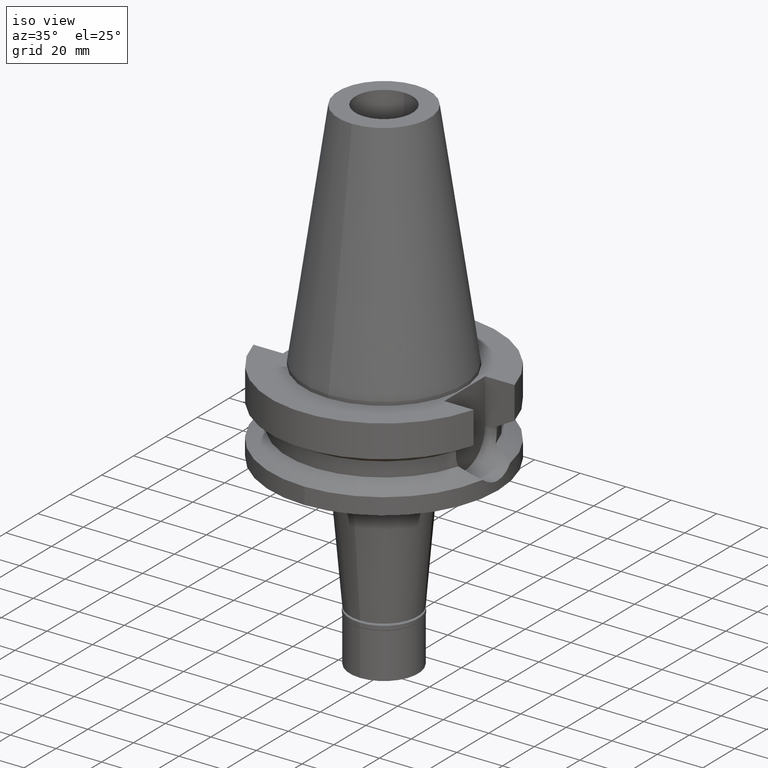
[diagram: clean part render]
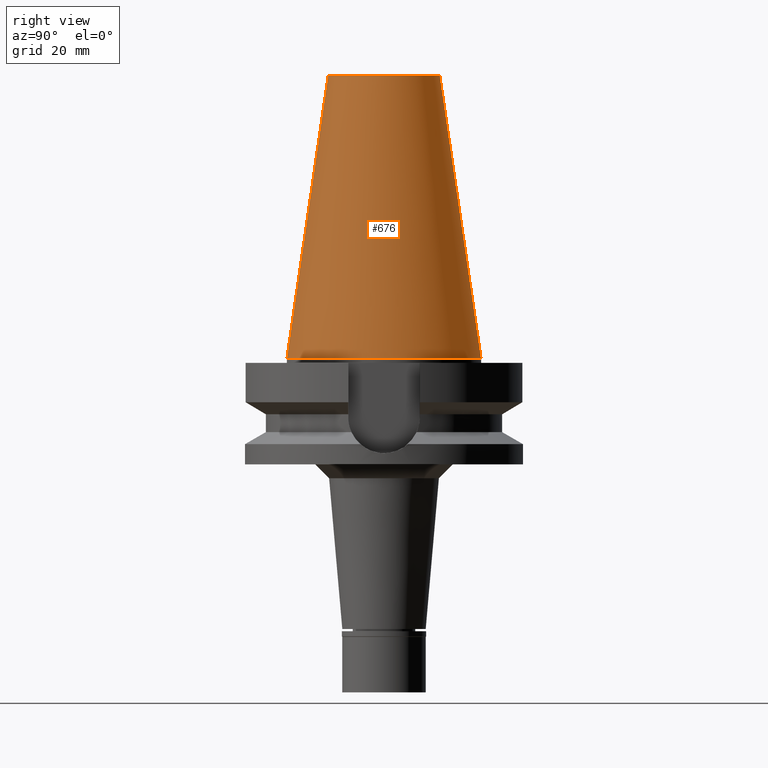
[diagram: tour spotlight — one face highlighted and labeled with its STEP entity id]
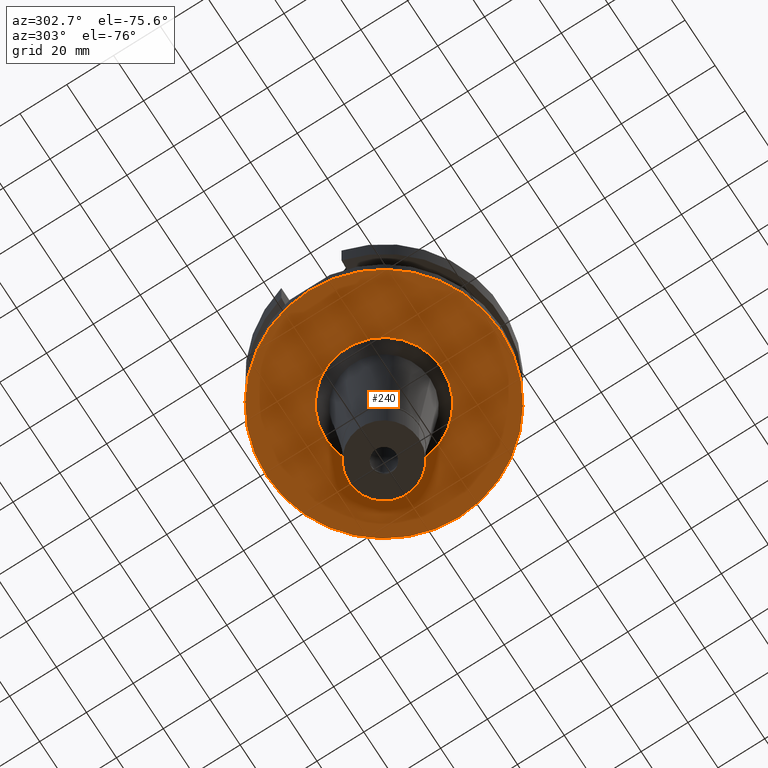
[diagram: tour spotlight — one face highlighted and labeled with its STEP entity id]
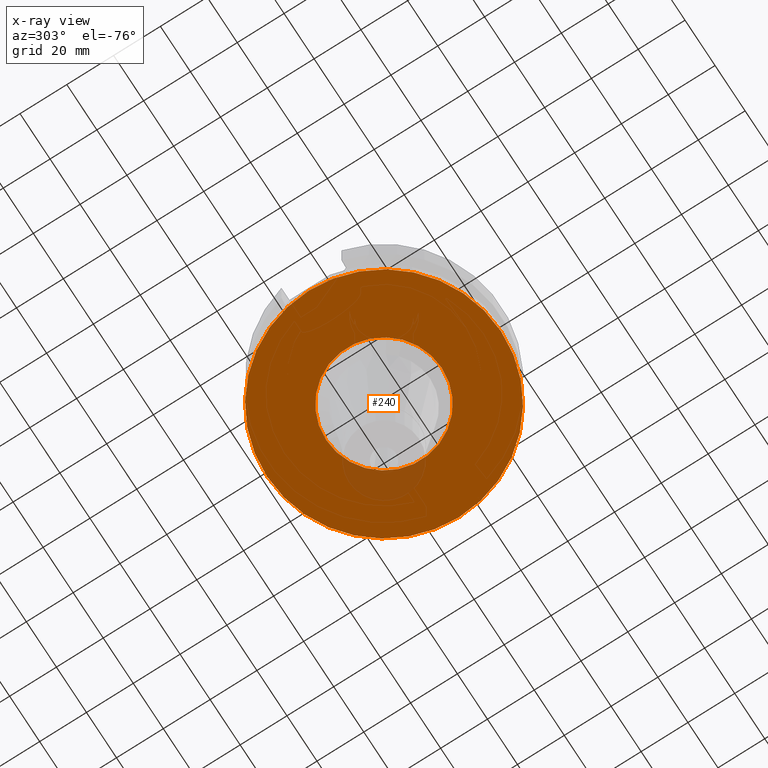
[diagram: x-ray of the same camera — body ghosted, this tour face saturated]
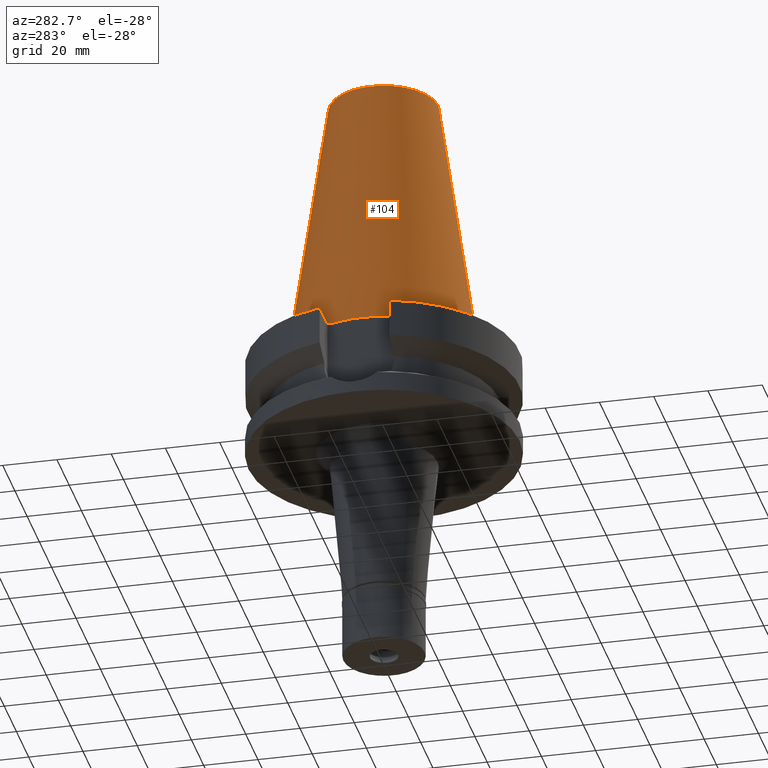
[diagram: tour spotlight — one face highlighted and labeled with its STEP entity id]
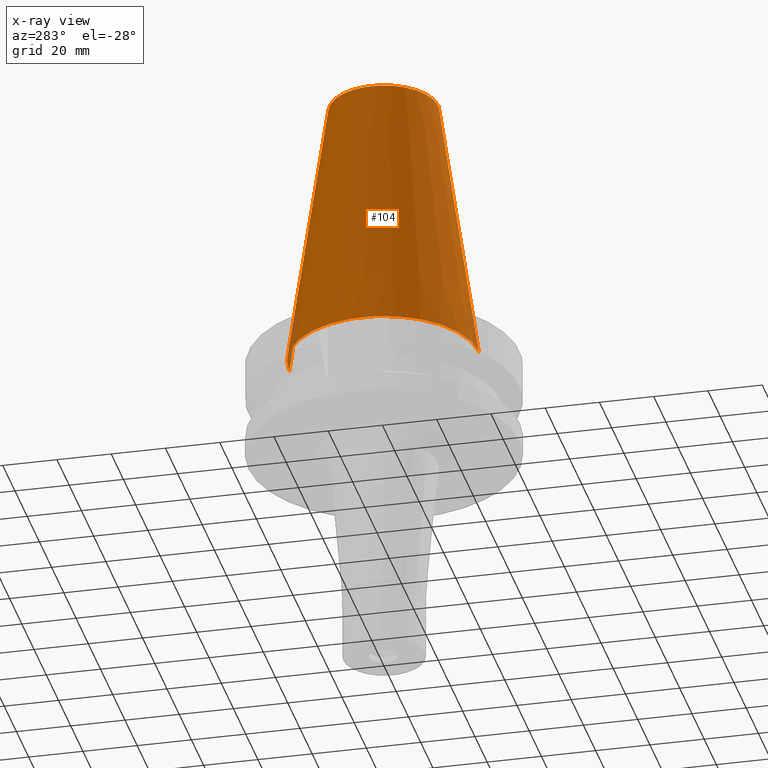
[diagram: x-ray of the same camera — body ghosted, this tour face saturated]
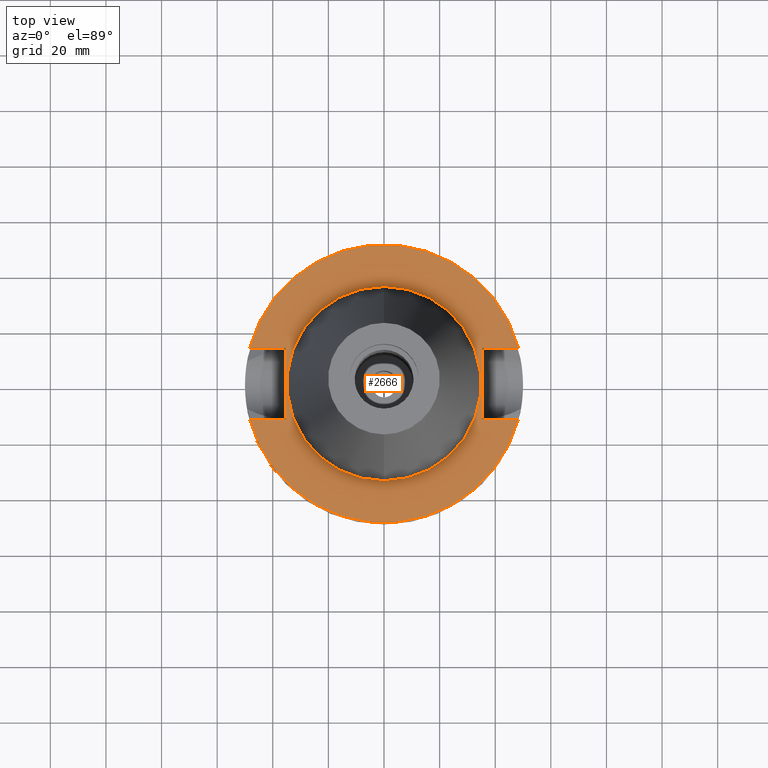
[diagram: tour spotlight — one face highlighted and labeled with its STEP entity id]
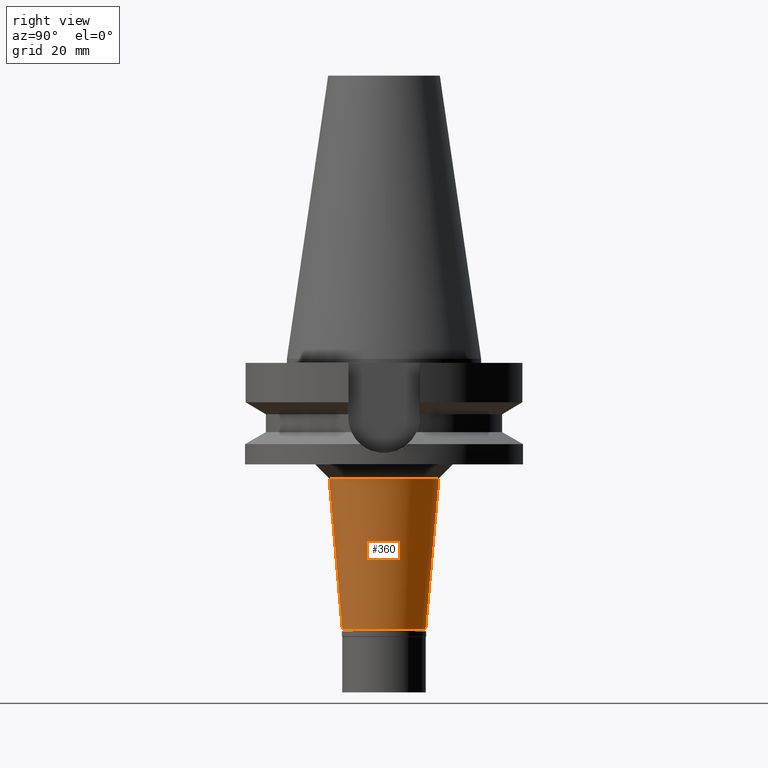
[diagram: tour spotlight — one face highlighted and labeled with its STEP entity id]
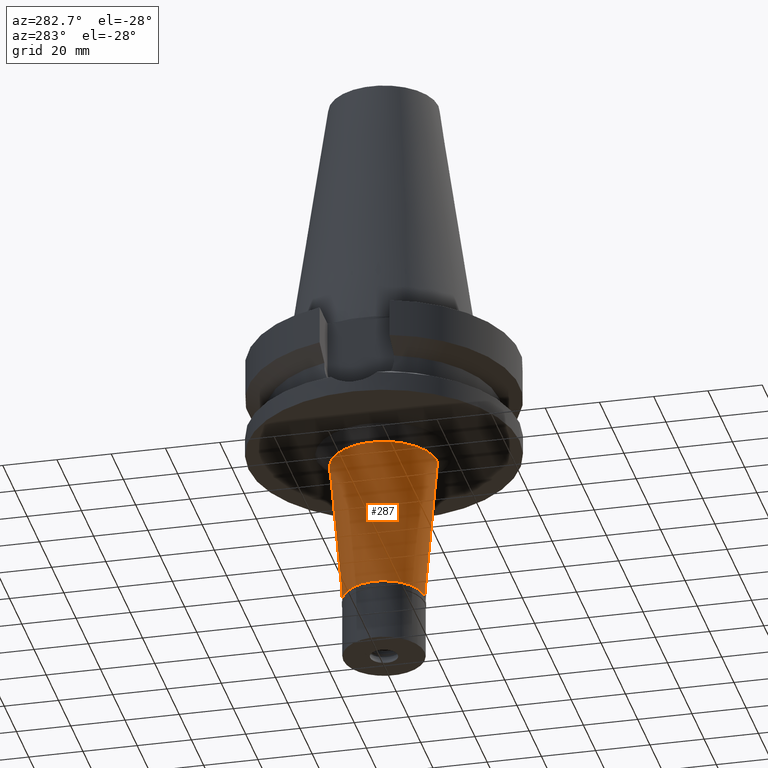
[diagram: tour spotlight — one face highlighted and labeled with its STEP entity id]
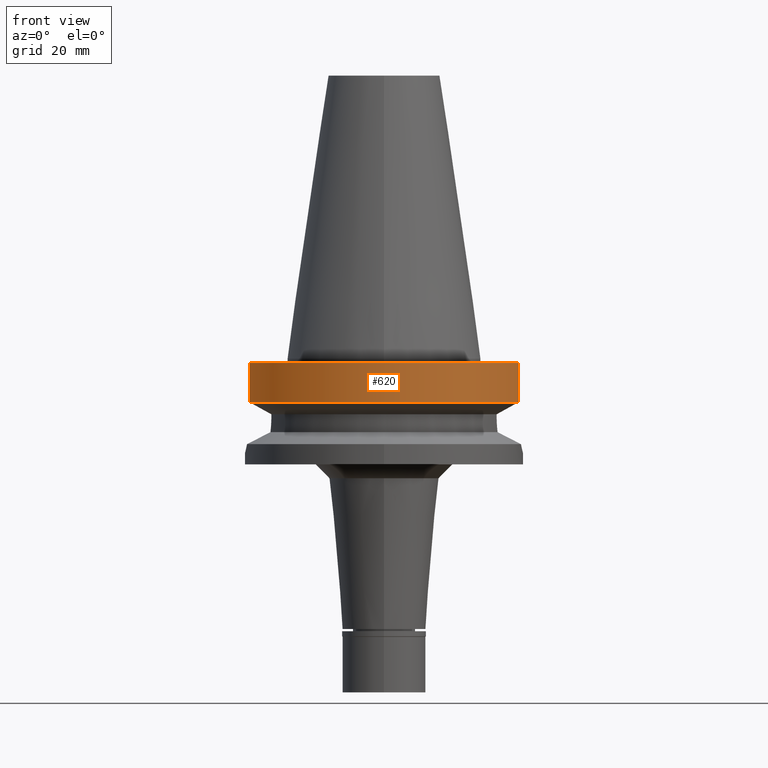
[diagram: tour spotlight — one face highlighted and labeled with its STEP entity id]
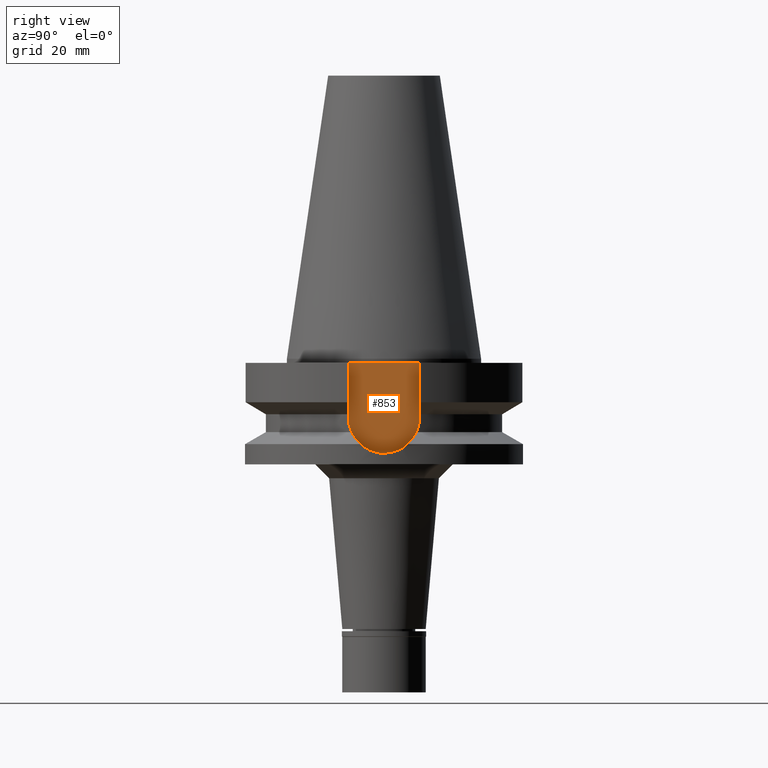
[diagram: tour spotlight — one face highlighted and labeled with its STEP entity id]
A machine part: a face-by-face anatomy tour. The part has 81 B-rep faces; the first image is the clean iso view, then the 8 largest visible faces are spotlighted one at a time (largest first), each with its STEP entity span.

Face 1 — right view, entity #676. In plain terms, the highlighted conical surface has half-angle 8.297 deg.
Definition (entity closure, byte-faithful):
#62 = DIRECTION ( 'NONE',  ( 0.0000000000000000000, 0.1443043893538948075, -0.9895333461855641000 ) ) ;
#130 = CARTESIAN_POINT ( 'NONE',  ( 0.0000000000000000000, -20.07942971896000017, 101.7999999999999972 ) ) ;
#253 = VECTOR ( 'NONE', #62, 1000.000000000000114 ) ;
#262 = EDGE_LOOP ( 'NONE', ( #1073, #1153, #1984, #1111 ) ) ;
#335 = VERTEX_POINT ( 'NONE', #2606 ) ;
#381 = CARTESIAN_POINT ( 'NONE',  ( 0.0000000000000000000, 1.847992019912999597E-14, 50.89999999999999858 ) ) ;
#412 = CARTESIAN_POINT ( 'NONE',  ( 0.0000000000000000000, 1.847992019912999597E-14, 101.7999999999999972 ) ) ;
#413 = AXIS2_PLACEMENT_3D ( 'NONE', #381, #1661, #2650 ) ;
#421 = CIRCLE ( 'NONE', #1497, 20.07942971896000017 ) ;
#425 = VECTOR ( 'NONE', #2610, 1000.000000000000114 ) ;
#597 = EDGE_CURVE ( 'NONE', #335, #2379, #2816, .T. ) ;
#676 = ADVANCED_FACE ( 'NONE', ( #846 ), #1794, .T. ) ;
#846 = FACE_OUTER_BOUND ( 'NONE', #262, .T. ) ;
#879 = DIRECTION ( 'NONE',  ( 0.0000000000000000000, 1.000000000000000000, 0.0000000000000000000 ) ) ;
#1073 = ORIENTED_EDGE ( 'NONE', *, *, #2040, .T. ) ;
#1111 = ORIENTED_EDGE ( 'NONE', *, *, #597, .F. ) ;
#1153 = ORIENTED_EDGE ( 'NONE', *, *, #2508, .T. ) ;
#1195 = AXIS2_PLACEMENT_3D ( 'NONE', #1667, #2668, #1918 ) ;
#1348 = CIRCLE ( 'NONE', #1195, 34.92499999999999716 ) ;
#1497 = AXIS2_PLACEMENT_3D ( 'NONE', #412, #2061, #879 ) ;
#1541 = CARTESIAN_POINT ( 'NONE',  ( 0.0000000000000000000, 34.92499999999999716, 3.836930773104999931E-13 ) ) ;
#1565 = CARTESIAN_POINT ( 'NONE',  ( 0.0000000000000000000, 20.07942971896000017, 101.7999999999999972 ) ) ;
#1661 = DIRECTION ( 'NONE',  ( 0.0000000000000000000, 0.0000000000000000000, -1.000000000000000000 ) ) ;
#1667 = CARTESIAN_POINT ( 'NONE',  ( 0.0000000000000000000, 1.847992019912999597E-14, 3.979039320256999774E-13 ) ) ;
#1794 = CONICAL_SURFACE ( 'NONE', #413, 27.50221485948000222, 0.1448099680379422438 ) ;
#1918 = DIRECTION ( 'NONE',  ( 0.0000000000000000000, 1.000000000000000000, 0.0000000000000000000 ) ) ;
#1959 = VERTEX_POINT ( 'NONE', #2093 ) ;
#1984 = ORIENTED_EDGE ( 'NONE', *, *, #3170, .F. ) ;
#2040 = EDGE_CURVE ( 'NONE', #335, #3050, #421, .T. ) ;
#2061 = DIRECTION ( 'NONE',  ( 0.0000000000000000000, 0.0000000000000000000, -1.000000000000000000 ) ) ;
#2093 = CARTESIAN_POINT ( 'NONE',  ( 0.0000000000000000000, -34.92499999999999716, 3.836930773104999931E-13 ) ) ;
#2132 = CARTESIAN_POINT ( 'NONE',  ( 0.0000000000000000000, -20.07942971896000017, 101.7999999999999972 ) ) ;
#2379 = VERTEX_POINT ( 'NONE', #1541 ) ;
#2380 = LINE ( 'NONE', #130, #425 ) ;
#2508 = EDGE_CURVE ( 'NONE', #3050, #1959, #2380, .T. ) ;
#2606 = CARTESIAN_POINT ( 'NONE',  ( 0.0000000000000000000, 20.07942971896000017, 101.7999999999999972 ) ) ;
#2610 = DIRECTION ( 'NONE',  ( 0.0000000000000000000, -0.1443043893538948075, -0.9895333461855641000 ) ) ;
#2650 = DIRECTION ( 'NONE',  ( 0.0000000000000000000, -1.000000000000000000, 0.0000000000000000000 ) ) ;
#2668 = DIRECTION ( 'NONE',  ( 0.0000000000000000000, 0.0000000000000000000, -1.000000000000000000 ) ) ;
#2816 = LINE ( 'NONE', #1565, #253 ) ;
#3050 = VERTEX_POINT ( 'NONE', #2132 ) ;
#3170 = EDGE_CURVE ( 'NONE', #2379, #1959, #1348, .T. ) ;

Face 2 — auxiliary view, entity #240. An x-ray twin of the same camera follows (body ghosted, this face saturated) — the face is partly hidden behind the body. In plain terms, the highlighted planar face has unit normal (0, 0, -1).
Definition (entity closure, byte-faithful):
#6 = AXIS2_PLACEMENT_3D ( 'NONE', #713, #1671, #2660 ) ;
#240 = ADVANCED_FACE ( 'NONE', ( #2618, #1432 ), #3086, .T. ) ;
#270 = CIRCLE ( 'NONE', #2637, 50.00000000000000000 ) ;
#358 = VERTEX_POINT ( 'NONE', #2224 ) ;
#459 = CIRCLE ( 'NONE', #1996, 24.74188556311000298 ) ;
#496 = EDGE_CURVE ( 'NONE', #358, #2609, #459, .T. ) ;
#610 = DIRECTION ( 'NONE',  ( 0.0000000000000000000, 0.0000000000000000000, -1.000000000000000000 ) ) ;
#647 = CARTESIAN_POINT ( 'NONE',  ( 0.0000000000000000000, 2.603048003927999965E-14, -38.00000000000000000 ) ) ;
#662 = CARTESIAN_POINT ( 'NONE',  ( 0.0000000000000000000, 2.603048003927999965E-14, -38.00000000000000000 ) ) ;
#713 = CARTESIAN_POINT ( 'NONE',  ( 0.0000000000000000000, 0.0000000000000000000, -38.00000000000000000 ) ) ;
#819 = CARTESIAN_POINT ( 'NONE',  ( 0.0000000000000000000, 50.00000000000000000, -38.00000000000000000 ) ) ;
#882 = CARTESIAN_POINT ( 'NONE',  ( 0.0000000000000000000, 0.0000000000000000000, -38.00000000000000000 ) ) ;
#919 = AXIS2_PLACEMENT_3D ( 'NONE', #882, #610, #1583 ) ;
#937 = VERTEX_POINT ( 'NONE', #1495 ) ;
#1148 = CIRCLE ( 'NONE', #1300, 50.00000000000000000 ) ;
#1200 = EDGE_CURVE ( 'NONE', #2609, #358, #2207, .T. ) ;
#1212 = CARTESIAN_POINT ( 'NONE',  ( 0.0000000000000000000, 0.0000000000000000000, -38.00000000000000000 ) ) ;
#1300 = AXIS2_PLACEMENT_3D ( 'NONE', #647, #3089, #3074 ) ;
#1432 = FACE_BOUND ( 'NONE', #2690, .T. ) ;
#1444 = ORIENTED_EDGE ( 'NONE', *, *, #1200, .F. ) ;
#1495 = CARTESIAN_POINT ( 'NONE',  ( 0.0000000000000000000, -50.00000000000000000, -38.00000000000000000 ) ) ;
#1583 = DIRECTION ( 'NONE',  ( 0.0000000000000000000, -1.000000000000000000, 0.0000000000000000000 ) ) ;
#1671 = DIRECTION ( 'NONE',  ( 0.0000000000000000000, 0.0000000000000000000, -1.000000000000000000 ) ) ;
#1735 = ORIENTED_EDGE ( 'NONE', *, *, #2945, .F. ) ;
#1996 = AXIS2_PLACEMENT_3D ( 'NONE', #1212, #2189, #2715 ) ;
#2189 = DIRECTION ( 'NONE',  ( 0.0000000000000000000, 0.0000000000000000000, -1.000000000000000000 ) ) ;
#2207 = CIRCLE ( 'NONE', #6, 24.74188556311000298 ) ;
#2224 = CARTESIAN_POINT ( 'NONE',  ( 0.0000000000000000000, 24.74188556311000298, -38.00000000000000000 ) ) ;
#2333 = EDGE_LOOP ( 'NONE', ( #2796, #1735 ) ) ;
#2359 = VERTEX_POINT ( 'NONE', #819 ) ;
#2540 = ORIENTED_EDGE ( 'NONE', *, *, #496, .F. ) ;
#2575 = DIRECTION ( 'NONE',  ( 0.0000000000000000000, 1.000000000000000000, 0.0000000000000000000 ) ) ;
#2609 = VERTEX_POINT ( 'NONE', #2889 ) ;
#2618 = FACE_OUTER_BOUND ( 'NONE', #2333, .T. ) ;
#2622 = DIRECTION ( 'NONE',  ( 0.0000000000000000000, 0.0000000000000000000, 1.000000000000000000 ) ) ;
#2637 = AXIS2_PLACEMENT_3D ( 'NONE', #662, #2622, #2575 ) ;
#2660 = DIRECTION ( 'NONE',  ( 0.0000000000000000000, -1.000000000000000000, 0.0000000000000000000 ) ) ;
#2690 = EDGE_LOOP ( 'NONE', ( #2540, #1444 ) ) ;
#2715 = DIRECTION ( 'NONE',  ( 0.0000000000000000000, 1.000000000000000000, 0.0000000000000000000 ) ) ;
#2796 = ORIENTED_EDGE ( 'NONE', *, *, #3018, .F. ) ;
#2889 = CARTESIAN_POINT ( 'NONE',  ( 0.0000000000000000000, -24.74188556311000298, -38.00000000000000000 ) ) ;
#2945 = EDGE_CURVE ( 'NONE', #937, #2359, #1148, .T. ) ;
#3018 = EDGE_CURVE ( 'NONE', #2359, #937, #270, .T. ) ;
#3074 = DIRECTION ( 'NONE',  ( 0.0000000000000000000, -1.000000000000000000, 0.0000000000000000000 ) ) ;
#3086 = PLANE ( 'NONE',  #919 ) ;
#3089 = DIRECTION ( 'NONE',  ( 0.0000000000000000000, 0.0000000000000000000, 1.000000000000000000 ) ) ;

Face 3 — auxiliary view, entity #104. An x-ray twin of the same camera follows (body ghosted, this face saturated) — the face is partly hidden behind the body. In plain terms, the highlighted conical surface has half-angle 8.297 deg.
Definition (entity closure, byte-faithful):
#62 = DIRECTION ( 'NONE',  ( 0.0000000000000000000, 0.1443043893538948075, -0.9895333461855641000 ) ) ;
#104 = ADVANCED_FACE ( 'NONE', ( #1284 ), #1588, .T. ) ;
#130 = CARTESIAN_POINT ( 'NONE',  ( 0.0000000000000000000, -20.07942971896000017, 101.7999999999999972 ) ) ;
#253 = VECTOR ( 'NONE', #62, 1000.000000000000114 ) ;
#335 = VERTEX_POINT ( 'NONE', #2606 ) ;
#425 = VECTOR ( 'NONE', #2610, 1000.000000000000114 ) ;
#524 = ORIENTED_EDGE ( 'NONE', *, *, #2508, .F. ) ;
#597 = EDGE_CURVE ( 'NONE', #335, #2379, #2816, .T. ) ;
#790 = ORIENTED_EDGE ( 'NONE', *, *, #3003, .F. ) ;
#986 = AXIS2_PLACEMENT_3D ( 'NONE', #1168, #2872, #1605 ) ;
#1055 = DIRECTION ( 'NONE',  ( 0.0000000000000000000, 0.0000000000000000000, -1.000000000000000000 ) ) ;
#1168 = CARTESIAN_POINT ( 'NONE',  ( 0.0000000000000000000, 1.847992019912999597E-14, 3.979039320256999774E-13 ) ) ;
#1284 = FACE_OUTER_BOUND ( 'NONE', #1853, .T. ) ;
#1541 = CARTESIAN_POINT ( 'NONE',  ( 0.0000000000000000000, 34.92499999999999716, 3.836930773104999931E-13 ) ) ;
#1565 = CARTESIAN_POINT ( 'NONE',  ( 0.0000000000000000000, 20.07942971896000017, 101.7999999999999972 ) ) ;
#1588 = CONICAL_SURFACE ( 'NONE', #1994, 27.50221485948000222, 0.1448099680379422438 ) ;
#1605 = DIRECTION ( 'NONE',  ( 0.0000000000000000000, -1.000000000000000000, 0.0000000000000000000 ) ) ;
#1705 = CIRCLE ( 'NONE', #986, 34.92499999999999716 ) ;
#1755 = CIRCLE ( 'NONE', #2373, 20.07942971896000017 ) ;
#1793 = DIRECTION ( 'NONE',  ( 0.0000000000000000000, -1.000000000000000000, 0.0000000000000000000 ) ) ;
#1808 = CARTESIAN_POINT ( 'NONE',  ( 0.0000000000000000000, 1.847992019912999597E-14, 101.7999999999999972 ) ) ;
#1853 = EDGE_LOOP ( 'NONE', ( #790, #524, #3138, #2071 ) ) ;
#1959 = VERTEX_POINT ( 'NONE', #2093 ) ;
#1963 = EDGE_CURVE ( 'NONE', #3050, #335, #1755, .T. ) ;
#1994 = AXIS2_PLACEMENT_3D ( 'NONE', #2964, #1055, #1793 ) ;
#2071 = ORIENTED_EDGE ( 'NONE', *, *, #597, .T. ) ;
#2093 = CARTESIAN_POINT ( 'NONE',  ( 0.0000000000000000000, -34.92499999999999716, 3.836930773104999931E-13 ) ) ;
#2132 = CARTESIAN_POINT ( 'NONE',  ( 0.0000000000000000000, -20.07942971896000017, 101.7999999999999972 ) ) ;
#2373 = AXIS2_PLACEMENT_3D ( 'NONE', #1808, #2817, #2374 ) ;
#2374 = DIRECTION ( 'NONE',  ( 0.0000000000000000000, -1.000000000000000000, 0.0000000000000000000 ) ) ;
#2379 = VERTEX_POINT ( 'NONE', #1541 ) ;
#2380 = LINE ( 'NONE', #130, #425 ) ;
#2508 = EDGE_CURVE ( 'NONE', #3050, #1959, #2380, .T. ) ;
#2606 = CARTESIAN_POINT ( 'NONE',  ( 0.0000000000000000000, 20.07942971896000017, 101.7999999999999972 ) ) ;
#2610 = DIRECTION ( 'NONE',  ( 0.0000000000000000000, -0.1443043893538948075, -0.9895333461855641000 ) ) ;
#2816 = LINE ( 'NONE', #1565, #253 ) ;
#2817 = DIRECTION ( 'NONE',  ( 0.0000000000000000000, 0.0000000000000000000, -1.000000000000000000 ) ) ;
#2872 = DIRECTION ( 'NONE',  ( 0.0000000000000000000, 0.0000000000000000000, -1.000000000000000000 ) ) ;
#2964 = CARTESIAN_POINT ( 'NONE',  ( 0.0000000000000000000, 1.847992019912999597E-14, 50.89999999999999858 ) ) ;
#3003 = EDGE_CURVE ( 'NONE', #1959, #2379, #1705, .T. ) ;
#3050 = VERTEX_POINT ( 'NONE', #2132 ) ;
#3138 = ORIENTED_EDGE ( 'NONE', *, *, #1963, .T. ) ;

Face 4 — top view, entity #2666. In plain terms, the highlighted planar face has unit normal (0, 0, -1).
Definition (entity closure, byte-faithful):
#45 = CARTESIAN_POINT ( 'NONE',  ( -35.39999999999999858, 12.84999999999999964, -1.500000000000000000 ) ) ;
#95 = CARTESIAN_POINT ( 'NONE',  ( -35.39999999999999858, 12.84999999999999964, -1.500000000000000000 ) ) ;
#101 = CARTESIAN_POINT ( 'NONE',  ( 0.0000000000000000000, 2.603048003927999965E-14, -1.500000000000000000 ) ) ;
#105 = VECTOR ( 'NONE', #1001, 1000.000000000000000 ) ;
#109 = AXIS2_PLACEMENT_3D ( 'NONE', #1161, #2826, #2368 ) ;
#204 = DIRECTION ( 'NONE',  ( 0.0000000000000000000, 1.000000000000000000, 0.0000000000000000000 ) ) ;
#225 = VERTEX_POINT ( 'NONE', #898 ) ;
#236 = ORIENTED_EDGE ( 'NONE', *, *, #2465, .F. ) ;
#241 = VERTEX_POINT ( 'NONE', #3102 ) ;
#289 = CARTESIAN_POINT ( 'NONE',  ( -35.39999999999999858, -12.84999999999999964, -1.500000000000000000 ) ) ;
#296 = ORIENTED_EDGE ( 'NONE', *, *, #1496, .F. ) ;
#315 = CIRCLE ( 'NONE', #109, 34.92499999999999716 ) ;
#336 = DIRECTION ( 'NONE',  ( 0.0000000000000000000, 1.000000000000000000, 0.0000000000000000000 ) ) ;
#345 = CARTESIAN_POINT ( 'NONE',  ( 48.32057015392000210, -12.84999999999999964, -1.500000000000000000 ) ) ;
#366 = DIRECTION ( 'NONE',  ( 1.000000000000000000, 0.0000000000000000000, 0.0000000000000000000 ) ) ;
#414 = AXIS2_PLACEMENT_3D ( 'NONE', #449, #994, #204 ) ;
#449 = CARTESIAN_POINT ( 'NONE',  ( 0.0000000000000000000, 2.603048003927999965E-14, -1.500000000000000000 ) ) ;
#456 = EDGE_CURVE ( 'NONE', #1439, #3043, #2491, .T. ) ;
#479 = CARTESIAN_POINT ( 'NONE',  ( -35.39999999999999858, -12.84999999999999964, -1.500000000000000000 ) ) ;
#543 = ORIENTED_EDGE ( 'NONE', *, *, #1340, .F. ) ;
#577 = LINE ( 'NONE', #289, #2634 ) ;
#608 = CARTESIAN_POINT ( 'NONE',  ( 35.39999999999999858, -12.84999999999999964, -1.500000000000000000 ) ) ;
#661 = EDGE_CURVE ( 'NONE', #1069, #2552, #1433, .T. ) ;
#783 = CARTESIAN_POINT ( 'NONE',  ( 35.39999999999999858, 12.84999999999999964, -1.500000000000000000 ) ) ;
#791 = ORIENTED_EDGE ( 'NONE', *, *, #1598, .T. ) ;
#885 = CARTESIAN_POINT ( 'NONE',  ( 48.32057015392000210, 12.84999999999999964, -1.500000000000000000 ) ) ;
#898 = CARTESIAN_POINT ( 'NONE',  ( -35.39999999999999858, -12.84999999999999964, -1.500000000000000000 ) ) ;
#928 = PLANE ( 'NONE',  #3095 ) ;
#948 = VERTEX_POINT ( 'NONE', #45 ) ;
#992 = EDGE_LOOP ( 'NONE', ( #296, #543 ) ) ;
#994 = DIRECTION ( 'NONE',  ( 0.0000000000000000000, 0.0000000000000000000, -1.000000000000000000 ) ) ;
#1001 = DIRECTION ( 'NONE',  ( 1.000000000000000000, 0.0000000000000000000, 0.0000000000000000000 ) ) ;
#1025 = ORIENTED_EDGE ( 'NONE', *, *, #1223, .F. ) ;
#1026 = ORIENTED_EDGE ( 'NONE', *, *, #456, .T. ) ;
#1058 = VERTEX_POINT ( 'NONE', #1818 ) ;
#1069 = VERTEX_POINT ( 'NONE', #345 ) ;
#1081 = DIRECTION ( 'NONE',  ( 0.0000000000000000000, 0.0000000000000000000, -1.000000000000000000 ) ) ;
#1132 = CARTESIAN_POINT ( 'NONE',  ( 35.39999999999999858, 12.84999999999999964, -1.500000000000000000 ) ) ;
#1159 = CARTESIAN_POINT ( 'NONE',  ( -48.32057015392000210, -12.84999999999999964, -1.500000000000000000 ) ) ;
#1161 = CARTESIAN_POINT ( 'NONE',  ( 0.0000000000000000000, 2.603048003927999965E-14, -1.500000000000000000 ) ) ;
#1184 = VECTOR ( 'NONE', #2884, 1000.000000000000000 ) ;
#1185 = CARTESIAN_POINT ( 'NONE',  ( -48.32057015392000210, 12.84999999999999964, -1.500000000000000000 ) ) ;
#1223 = EDGE_CURVE ( 'NONE', #3160, #3043, #1538, .T. ) ;
#1296 = VECTOR ( 'NONE', #1318, 1000.000000000000000 ) ;
#1313 = VERTEX_POINT ( 'NONE', #2721 ) ;
#1318 = DIRECTION ( 'NONE',  ( 0.0000000000000000000, -1.000000000000000000, 0.0000000000000000000 ) ) ;
#1340 = EDGE_CURVE ( 'NONE', #1058, #241, #1855, .T. ) ;
#1433 = CIRCLE ( 'NONE', #2574, 50.00000000000000000 ) ;
#1439 = VERTEX_POINT ( 'NONE', #1132 ) ;
#1459 = ORIENTED_EDGE ( 'NONE', *, *, #1962, .F. ) ;
#1496 = EDGE_CURVE ( 'NONE', #241, #1058, #315, .T. ) ;
#1538 = CIRCLE ( 'NONE', #414, 50.00000000000000000 ) ;
#1545 = ORIENTED_EDGE ( 'NONE', *, *, #2364, .F. ) ;
#1586 = DIRECTION ( 'NONE',  ( 0.0000000000000000000, -1.000000000000000000, 0.0000000000000000000 ) ) ;
#1598 = EDGE_CURVE ( 'NONE', #225, #2552, #3174, .T. ) ;
#1683 = CARTESIAN_POINT ( 'NONE',  ( 0.0000000000000000000, 2.603048003927999965E-14, -1.500000000000000000 ) ) ;
#1783 = CARTESIAN_POINT ( 'NONE',  ( 35.39999999999999858, 12.84999999999999964, -1.500000000000000000 ) ) ;
#1816 = LINE ( 'NONE', #1783, #1296 ) ;
#1818 = CARTESIAN_POINT ( 'NONE',  ( 0.0000000000000000000, -34.92499999999999716, -1.500000000000000000 ) ) ;
#1855 = CIRCLE ( 'NONE', #2055, 34.92499999999999716 ) ;
#1887 = FACE_OUTER_BOUND ( 'NONE', #2042, .T. ) ;
#1905 = CARTESIAN_POINT ( 'NONE',  ( 0.0000000000000000000, 1.206277097159999845E-14, -1.500000000000000000 ) ) ;
#1927 = EDGE_CURVE ( 'NONE', #225, #948, #577, .T. ) ;
#1962 = EDGE_CURVE ( 'NONE', #1313, #1069, #2801, .T. ) ;
#2042 = EDGE_LOOP ( 'NONE', ( #791, #2367, #1459, #1545, #1026, #1025, #236, #2216 ) ) ;
#2052 = DIRECTION ( 'NONE',  ( -1.000000000000000000, 0.0000000000000000000, 0.0000000000000000000 ) ) ;
#2055 = AXIS2_PLACEMENT_3D ( 'NONE', #1683, #2445, #2671 ) ;
#2059 = DIRECTION ( 'NONE',  ( 0.0000000000000000000, -1.000000000000000000, 0.0000000000000000000 ) ) ;
#2216 = ORIENTED_EDGE ( 'NONE', *, *, #1927, .F. ) ;
#2292 = LINE ( 'NONE', #95, #2947 ) ;
#2364 = EDGE_CURVE ( 'NONE', #1439, #1313, #1816, .T. ) ;
#2367 = ORIENTED_EDGE ( 'NONE', *, *, #661, .F. ) ;
#2368 = DIRECTION ( 'NONE',  ( 0.0000000000000000000, 1.000000000000000000, 0.0000000000000000000 ) ) ;
#2445 = DIRECTION ( 'NONE',  ( 0.0000000000000000000, 0.0000000000000000000, 1.000000000000000000 ) ) ;
#2465 = EDGE_CURVE ( 'NONE', #948, #3160, #2292, .T. ) ;
#2491 = LINE ( 'NONE', #783, #105 ) ;
#2552 = VERTEX_POINT ( 'NONE', #1159 ) ;
#2574 = AXIS2_PLACEMENT_3D ( 'NONE', #101, #1081, #2059 ) ;
#2634 = VECTOR ( 'NONE', #336, 1000.000000000000000 ) ;
#2642 = FACE_BOUND ( 'NONE', #992, .T. ) ;
#2666 = ADVANCED_FACE ( 'NONE', ( #1887, #2642 ), #928, .F. ) ;
#2671 = DIRECTION ( 'NONE',  ( 0.0000000000000000000, -1.000000000000000000, 0.0000000000000000000 ) ) ;
#2721 = CARTESIAN_POINT ( 'NONE',  ( 35.39999999999999858, -12.84999999999999964, -1.500000000000000000 ) ) ;
#2801 = LINE ( 'NONE', #608, #3042 ) ;
#2826 = DIRECTION ( 'NONE',  ( 0.0000000000000000000, 0.0000000000000000000, 1.000000000000000000 ) ) ;
#2884 = DIRECTION ( 'NONE',  ( -1.000000000000000000, 0.0000000000000000000, 0.0000000000000000000 ) ) ;
#2905 = DIRECTION ( 'NONE',  ( 0.0000000000000000000, 0.0000000000000000000, -1.000000000000000000 ) ) ;
#2947 = VECTOR ( 'NONE', #2052, 1000.000000000000000 ) ;
#3042 = VECTOR ( 'NONE', #366, 1000.000000000000000 ) ;
#3043 = VERTEX_POINT ( 'NONE', #885 ) ;
#3095 = AXIS2_PLACEMENT_3D ( 'NONE', #1905, #2905, #1586 ) ;
#3102 = CARTESIAN_POINT ( 'NONE',  ( 0.0000000000000000000, 34.92499999999999716, -1.500000000000000000 ) ) ;
#3160 = VERTEX_POINT ( 'NONE', #1185 ) ;
#3174 = LINE ( 'NONE', #479, #1184 ) ;

Face 5 — right view, entity #360. In plain terms, the highlighted conical surface has half-angle 5 deg.
Definition (entity closure, byte-faithful):
#2 = VERTEX_POINT ( 'NONE', #1931 ) ;
#48 = ORIENTED_EDGE ( 'NONE', *, *, #2023, .F. ) ;
#122 = CARTESIAN_POINT ( 'NONE',  ( 0.0000000000000000000, 19.74188556310999587, -43.00000000000000000 ) ) ;
#153 = CONICAL_SURFACE ( 'NONE', #2931, 17.37094278154999927, 0.08726646259969973729 ) ;
#313 = VECTOR ( 'NONE', #638, 1000.000000000000114 ) ;
#360 = ADVANCED_FACE ( 'NONE', ( #2972 ), #153, .T. ) ;
#443 = ORIENTED_EDGE ( 'NONE', *, *, #799, .T. ) ;
#495 = EDGE_CURVE ( 'NONE', #949, #2, #1745, .T. ) ;
#630 = VERTEX_POINT ( 'NONE', #2285 ) ;
#638 = DIRECTION ( 'NONE',  ( 0.0000000000000000000, 0.08715574274771356600, -0.9961946980917406602 ) ) ;
#751 = DIRECTION ( 'NONE',  ( 0.0000000000000000000, 0.0000000000000000000, 1.000000000000000000 ) ) ;
#799 = EDGE_CURVE ( 'NONE', #2268, #949, #1359, .T. ) ;
#864 = LINE ( 'NONE', #122, #1857 ) ;
#949 = VERTEX_POINT ( 'NONE', #1957 ) ;
#1135 = AXIS2_PLACEMENT_3D ( 'NONE', #2173, #751, #2941 ) ;
#1262 = DIRECTION ( 'NONE',  ( 0.0000000000000000000, 1.000000000000000000, 0.0000000000000000000 ) ) ;
#1359 = LINE ( 'NONE', #1851, #313 ) ;
#1669 = CARTESIAN_POINT ( 'NONE',  ( 0.0000000000000000000, 0.0000000000000000000, -43.00000000000000000 ) ) ;
#1745 = CIRCLE ( 'NONE', #1135, 15.00000000000000000 ) ;
#1851 = CARTESIAN_POINT ( 'NONE',  ( 0.0000000000000000000, -19.74188556310999587, -43.00000000000000000 ) ) ;
#1857 = VECTOR ( 'NONE', #1873, 1000.000000000000114 ) ;
#1873 = DIRECTION ( 'NONE',  ( 0.0000000000000000000, -0.08715574274771356600, -0.9961946980917406602 ) ) ;
#1931 = CARTESIAN_POINT ( 'NONE',  ( 0.0000000000000000000, 15.00000000000000000, -97.19999999999998863 ) ) ;
#1957 = CARTESIAN_POINT ( 'NONE',  ( 0.0000000000000000000, -15.00000000000000000, -97.19999999999998863 ) ) ;
#1970 = ORIENTED_EDGE ( 'NONE', *, *, #2806, .F. ) ;
#1985 = CARTESIAN_POINT ( 'NONE',  ( 0.0000000000000000000, -19.74188556310999587, -43.00000000000000000 ) ) ;
#2023 = EDGE_CURVE ( 'NONE', #630, #2, #864, .T. ) ;
#2060 = CIRCLE ( 'NONE', #2428, 19.74188556309999854 ) ;
#2173 = CARTESIAN_POINT ( 'NONE',  ( 0.0000000000000000000, 0.0000000000000000000, -97.19999999999998863 ) ) ;
#2194 = DIRECTION ( 'NONE',  ( 0.0000000000000000000, -1.000000000000000000, 0.0000000000000000000 ) ) ;
#2268 = VERTEX_POINT ( 'NONE', #1985 ) ;
#2285 = CARTESIAN_POINT ( 'NONE',  ( 0.0000000000000000000, 19.74188556310999587, -43.00000000000000000 ) ) ;
#2428 = AXIS2_PLACEMENT_3D ( 'NONE', #1669, #2706, #2194 ) ;
#2505 = CARTESIAN_POINT ( 'NONE',  ( 0.0000000000000000000, 0.0000000000000000000, -70.09999999999999432 ) ) ;
#2706 = DIRECTION ( 'NONE',  ( 0.0000000000000000000, 0.0000000000000000000, 1.000000000000000000 ) ) ;
#2731 = DIRECTION ( 'NONE',  ( 0.0000000000000000000, 0.0000000000000000000, 1.000000000000000000 ) ) ;
#2806 = EDGE_CURVE ( 'NONE', #2268, #630, #2060, .T. ) ;
#2913 = ORIENTED_EDGE ( 'NONE', *, *, #495, .T. ) ;
#2931 = AXIS2_PLACEMENT_3D ( 'NONE', #2505, #2731, #1262 ) ;
#2941 = DIRECTION ( 'NONE',  ( 0.0000000000000000000, -1.000000000000000000, 0.0000000000000000000 ) ) ;
#2972 = FACE_OUTER_BOUND ( 'NONE', #3108, .T. ) ;
#3108 = EDGE_LOOP ( 'NONE', ( #1970, #443, #2913, #48 ) ) ;

Face 6 — auxiliary view, entity #287. In plain terms, the highlighted conical surface has half-angle 5 deg.
Definition (entity closure, byte-faithful):
#2 = VERTEX_POINT ( 'NONE', #1931 ) ;
#33 = EDGE_CURVE ( 'NONE', #2, #949, #821, .T. ) ;
#122 = CARTESIAN_POINT ( 'NONE',  ( 0.0000000000000000000, 19.74188556310999587, -43.00000000000000000 ) ) ;
#249 = DIRECTION ( 'NONE',  ( 0.0000000000000000000, -1.000000000000000000, 0.0000000000000000000 ) ) ;
#287 = ADVANCED_FACE ( 'NONE', ( #1860 ), #515, .T. ) ;
#313 = VECTOR ( 'NONE', #638, 1000.000000000000114 ) ;
#404 = ORIENTED_EDGE ( 'NONE', *, *, #33, .T. ) ;
#515 = CONICAL_SURFACE ( 'NONE', #2673, 17.37094278154999927, 0.08726646259969973729 ) ;
#630 = VERTEX_POINT ( 'NONE', #2285 ) ;
#638 = DIRECTION ( 'NONE',  ( 0.0000000000000000000, 0.08715574274771356600, -0.9961946980917406602 ) ) ;
#691 = CIRCLE ( 'NONE', #2483, 19.74188556310999587 ) ;
#799 = EDGE_CURVE ( 'NONE', #2268, #949, #1359, .T. ) ;
#821 = CIRCLE ( 'NONE', #2620, 15.00000000000000000 ) ;
#838 = EDGE_LOOP ( 'NONE', ( #404, #2332, #855, #2665 ) ) ;
#855 = ORIENTED_EDGE ( 'NONE', *, *, #3128, .T. ) ;
#864 = LINE ( 'NONE', #122, #1857 ) ;
#942 = DIRECTION ( 'NONE',  ( 0.0000000000000000000, 0.0000000000000000000, -1.000000000000000000 ) ) ;
#949 = VERTEX_POINT ( 'NONE', #1957 ) ;
#1071 = DIRECTION ( 'NONE',  ( 0.0000000000000000000, 1.000000000000000000, 0.0000000000000000000 ) ) ;
#1109 = DIRECTION ( 'NONE',  ( 0.0000000000000000000, 0.0000000000000000000, 1.000000000000000000 ) ) ;
#1359 = LINE ( 'NONE', #1851, #313 ) ;
#1365 = DIRECTION ( 'NONE',  ( 0.0000000000000000000, 1.000000000000000000, 0.0000000000000000000 ) ) ;
#1851 = CARTESIAN_POINT ( 'NONE',  ( 0.0000000000000000000, -19.74188556310999587, -43.00000000000000000 ) ) ;
#1857 = VECTOR ( 'NONE', #1873, 1000.000000000000114 ) ;
#1860 = FACE_OUTER_BOUND ( 'NONE', #838, .T. ) ;
#1873 = DIRECTION ( 'NONE',  ( 0.0000000000000000000, -0.08715574274771356600, -0.9961946980917406602 ) ) ;
#1931 = CARTESIAN_POINT ( 'NONE',  ( 0.0000000000000000000, 15.00000000000000000, -97.19999999999998863 ) ) ;
#1957 = CARTESIAN_POINT ( 'NONE',  ( 0.0000000000000000000, -15.00000000000000000, -97.19999999999998863 ) ) ;
#1985 = CARTESIAN_POINT ( 'NONE',  ( 0.0000000000000000000, -19.74188556310999587, -43.00000000000000000 ) ) ;
#2023 = EDGE_CURVE ( 'NONE', #630, #2, #864, .T. ) ;
#2177 = CARTESIAN_POINT ( 'NONE',  ( 0.0000000000000000000, 0.0000000000000000000, -43.00000000000000000 ) ) ;
#2268 = VERTEX_POINT ( 'NONE', #1985 ) ;
#2285 = CARTESIAN_POINT ( 'NONE',  ( 0.0000000000000000000, 19.74188556310999587, -43.00000000000000000 ) ) ;
#2332 = ORIENTED_EDGE ( 'NONE', *, *, #799, .F. ) ;
#2483 = AXIS2_PLACEMENT_3D ( 'NONE', #2177, #942, #249 ) ;
#2496 = DIRECTION ( 'NONE',  ( 0.0000000000000000000, 0.0000000000000000000, 1.000000000000000000 ) ) ;
#2620 = AXIS2_PLACEMENT_3D ( 'NONE', #2719, #2496, #1071 ) ;
#2665 = ORIENTED_EDGE ( 'NONE', *, *, #2023, .T. ) ;
#2673 = AXIS2_PLACEMENT_3D ( 'NONE', #2834, #1109, #1365 ) ;
#2719 = CARTESIAN_POINT ( 'NONE',  ( 0.0000000000000000000, 0.0000000000000000000, -97.19999999999998863 ) ) ;
#2834 = CARTESIAN_POINT ( 'NONE',  ( 0.0000000000000000000, 0.0000000000000000000, -70.09999999999999432 ) ) ;
#3128 = EDGE_CURVE ( 'NONE', #2268, #630, #691, .T. ) ;

Face 7 — front view, entity #620. In plain terms, the highlighted cylindrical surface (partial cylindrical patch) has radius 50 mm, axis along (0, 0, -1).
Definition (entity closure, byte-faithful):
#90 = CARTESIAN_POINT ( 'NONE',  ( 0.0000000000000000000, 2.603048003927999965E-14, 112.5550000000000068 ) ) ;
#101 = CARTESIAN_POINT ( 'NONE',  ( 0.0000000000000000000, 2.603048003927999965E-14, -1.500000000000000000 ) ) ;
#180 = DIRECTION ( 'NONE',  ( 0.0000000000000000000, 0.0000000000000000000, 1.000000000000000000 ) ) ;
#209 = CARTESIAN_POINT ( 'NONE',  ( 48.32057015392000210, -12.84999999999999964, -15.66269223573000069 ) ) ;
#345 = CARTESIAN_POINT ( 'NONE',  ( 48.32057015392000210, -12.84999999999999964, -1.500000000000000000 ) ) ;
#620 = ADVANCED_FACE ( 'NONE', ( #2316 ), #863, .T. ) ;
#661 = EDGE_CURVE ( 'NONE', #1069, #2552, #1433, .T. ) ;
#678 = VECTOR ( 'NONE', #2980, 1000.000000000000114 ) ;
#742 = ORIENTED_EDGE ( 'NONE', *, *, #1403, .T. ) ;
#863 = CYLINDRICAL_SURFACE ( 'NONE', #1078, 50.00000000000000000 ) ;
#868 = EDGE_LOOP ( 'NONE', ( #3168, #742, #1530, #1829 ) ) ;
#880 = AXIS2_PLACEMENT_3D ( 'NONE', #2739, #180, #1626 ) ;
#903 = VERTEX_POINT ( 'NONE', #209 ) ;
#1007 = LINE ( 'NONE', #1983, #678 ) ;
#1069 = VERTEX_POINT ( 'NONE', #345 ) ;
#1078 = AXIS2_PLACEMENT_3D ( 'NONE', #90, #2039, #1579 ) ;
#1081 = DIRECTION ( 'NONE',  ( 0.0000000000000000000, 0.0000000000000000000, -1.000000000000000000 ) ) ;
#1084 = CIRCLE ( 'NONE', #880, 50.00000000000000000 ) ;
#1159 = CARTESIAN_POINT ( 'NONE',  ( -48.32057015392000210, -12.84999999999999964, -1.500000000000000000 ) ) ;
#1309 = VERTEX_POINT ( 'NONE', #1952 ) ;
#1381 = EDGE_CURVE ( 'NONE', #1309, #2552, #1007, .T. ) ;
#1403 = EDGE_CURVE ( 'NONE', #1309, #903, #1084, .T. ) ;
#1433 = CIRCLE ( 'NONE', #2574, 50.00000000000000000 ) ;
#1530 = ORIENTED_EDGE ( 'NONE', *, *, #1792, .F. ) ;
#1579 = DIRECTION ( 'NONE',  ( 0.0000000000000000000, -1.000000000000000000, 0.0000000000000000000 ) ) ;
#1626 = DIRECTION ( 'NONE',  ( 0.0000000000000000000, -1.000000000000000000, 0.0000000000000000000 ) ) ;
#1791 = CARTESIAN_POINT ( 'NONE',  ( 48.32057015392000210, -12.84999999999999964, -1.500000000000000000 ) ) ;
#1792 = EDGE_CURVE ( 'NONE', #1069, #903, #2754, .T. ) ;
#1829 = ORIENTED_EDGE ( 'NONE', *, *, #661, .T. ) ;
#1952 = CARTESIAN_POINT ( 'NONE',  ( -48.32056912865999720, -12.85000385536000067, -15.66265769973000310 ) ) ;
#1983 = CARTESIAN_POINT ( 'NONE',  ( -48.32056912865999720, -12.85000385536000067, -15.66265769973000310 ) ) ;
#2039 = DIRECTION ( 'NONE',  ( 0.0000000000000000000, 0.0000000000000000000, -1.000000000000000000 ) ) ;
#2059 = DIRECTION ( 'NONE',  ( 0.0000000000000000000, -1.000000000000000000, 0.0000000000000000000 ) ) ;
#2254 = DIRECTION ( 'NONE',  ( -7.240179279768712579E-08, -2.722563139016895448E-07, -0.9999999999999603650 ) ) ;
#2316 = FACE_OUTER_BOUND ( 'NONE', #868, .T. ) ;
#2552 = VERTEX_POINT ( 'NONE', #1159 ) ;
#2574 = AXIS2_PLACEMENT_3D ( 'NONE', #101, #1081, #2059 ) ;
#2632 = VECTOR ( 'NONE', #2254, 1000.000000000000114 ) ;
#2739 = CARTESIAN_POINT ( 'NONE',  ( 0.0000000000000000000, 1.006319759053999930E-14, -15.66269223573000069 ) ) ;
#2754 = LINE ( 'NONE', #1791, #2632 ) ;
#2980 = DIRECTION ( 'NONE',  ( -7.239216461970710843E-08, 2.722201093988895830E-07, 0.9999999999999603650 ) ) ;
#3168 = ORIENTED_EDGE ( 'NONE', *, *, #1381, .F. ) ;

Face 8 — right view, entity #853. In plain terms, the highlighted planar face has unit normal (1, 0, 0).
Definition (entity closure, byte-faithful):
#24 = ORIENTED_EDGE ( 'NONE', *, *, #1501, .F. ) ;
#74 = VERTEX_POINT ( 'NONE', #2476 ) ;
#274 = CARTESIAN_POINT ( 'NONE',  ( 35.39999999999999858, -12.84999999999999964, -21.14999999999999858 ) ) ;
#391 = ORIENTED_EDGE ( 'NONE', *, *, #2364, .T. ) ;
#523 = AXIS2_PLACEMENT_3D ( 'NONE', #1308, #1754, #2248 ) ;
#618 = CARTESIAN_POINT ( 'NONE',  ( 35.39999999999999858, 12.84999999999999964, -1.500000000000000000 ) ) ;
#728 = VECTOR ( 'NONE', #3123, 1000.000000000000000 ) ;
#853 = ADVANCED_FACE ( 'NONE', ( #1134 ), #1152, .T. ) ;
#906 = DIRECTION ( 'NONE',  ( 0.0000000000000000000, 1.000000000000000000, 0.0000000000000000000 ) ) ;
#1064 = EDGE_CURVE ( 'NONE', #74, #1255, #2049, .T. ) ;
#1132 = CARTESIAN_POINT ( 'NONE',  ( 35.39999999999999858, 12.84999999999999964, -1.500000000000000000 ) ) ;
#1134 = FACE_OUTER_BOUND ( 'NONE', #1577, .T. ) ;
#1152 = PLANE ( 'NONE',  #2627 ) ;
#1255 = VERTEX_POINT ( 'NONE', #274 ) ;
#1296 = VECTOR ( 'NONE', #1318, 1000.000000000000000 ) ;
#1308 = CARTESIAN_POINT ( 'NONE',  ( 35.39999999999999858, 0.0000000000000000000, -21.14999999999999858 ) ) ;
#1313 = VERTEX_POINT ( 'NONE', #2721 ) ;
#1318 = DIRECTION ( 'NONE',  ( 0.0000000000000000000, -1.000000000000000000, 0.0000000000000000000 ) ) ;
#1439 = VERTEX_POINT ( 'NONE', #1132 ) ;
#1501 = EDGE_CURVE ( 'NONE', #1439, #74, #2862, .T. ) ;
#1570 = ORIENTED_EDGE ( 'NONE', *, *, #1064, .F. ) ;
#1577 = EDGE_LOOP ( 'NONE', ( #2773, #1570, #24, #391 ) ) ;
#1674 = EDGE_CURVE ( 'NONE', #1255, #1313, #1898, .T. ) ;
#1679 = DIRECTION ( 'NONE',  ( 0.0000000000000000000, 0.0000000000000000000, 1.000000000000000000 ) ) ;
#1750 = VECTOR ( 'NONE', #1679, 1000.000000000000000 ) ;
#1754 = DIRECTION ( 'NONE',  ( -1.000000000000000000, 0.0000000000000000000, 0.0000000000000000000 ) ) ;
#1783 = CARTESIAN_POINT ( 'NONE',  ( 35.39999999999999858, 12.84999999999999964, -1.500000000000000000 ) ) ;
#1816 = LINE ( 'NONE', #1783, #1296 ) ;
#1898 = LINE ( 'NONE', #2143, #1750 ) ;
#2049 = CIRCLE ( 'NONE', #523, 12.84999999999999964 ) ;
#2110 = CARTESIAN_POINT ( 'NONE',  ( 35.39999999999999858, 0.0000000000000000000, 0.0000000000000000000 ) ) ;
#2143 = CARTESIAN_POINT ( 'NONE',  ( 35.39999999999999858, -12.84999999999999964, -21.14999999999999858 ) ) ;
#2248 = DIRECTION ( 'NONE',  ( 0.0000000000000000000, 1.000000000000000000, 0.0000000000000000000 ) ) ;
#2364 = EDGE_CURVE ( 'NONE', #1439, #1313, #1816, .T. ) ;
#2476 = CARTESIAN_POINT ( 'NONE',  ( 35.39999999999999858, 12.84999999999999964, -21.14999999999999858 ) ) ;
#2627 = AXIS2_PLACEMENT_3D ( 'NONE', #2110, #3111, #906 ) ;
#2721 = CARTESIAN_POINT ( 'NONE',  ( 35.39999999999999858, -12.84999999999999964, -1.500000000000000000 ) ) ;
#2773 = ORIENTED_EDGE ( 'NONE', *, *, #1674, .F. ) ;
#2862 = LINE ( 'NONE', #618, #728 ) ;
#3111 = DIRECTION ( 'NONE',  ( 1.000000000000000000, 0.0000000000000000000, 0.0000000000000000000 ) ) ;
#3123 = DIRECTION ( 'NONE',  ( 0.0000000000000000000, 0.0000000000000000000, -1.000000000000000000 ) ) ;